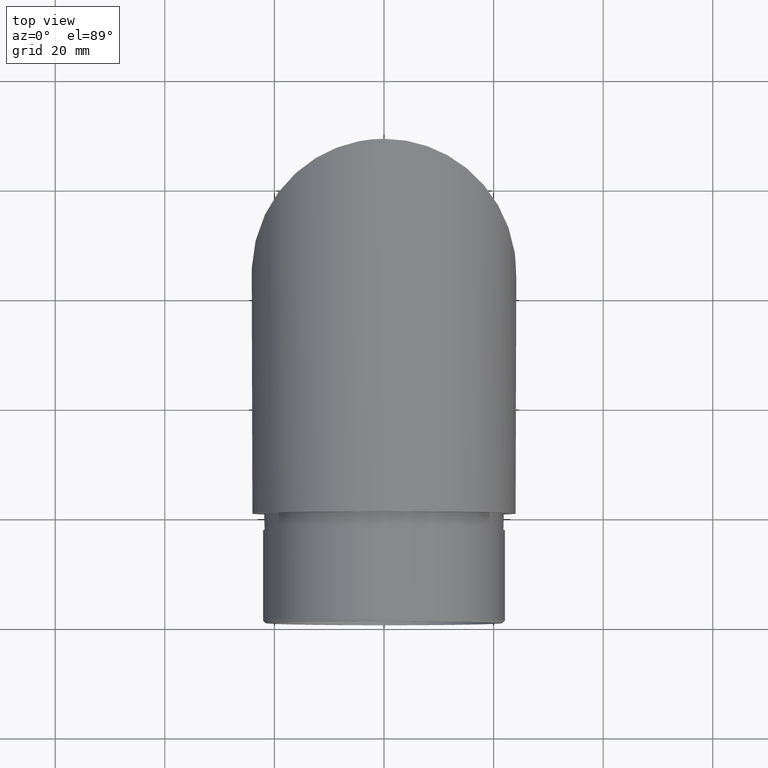
[diagram: clean part render]
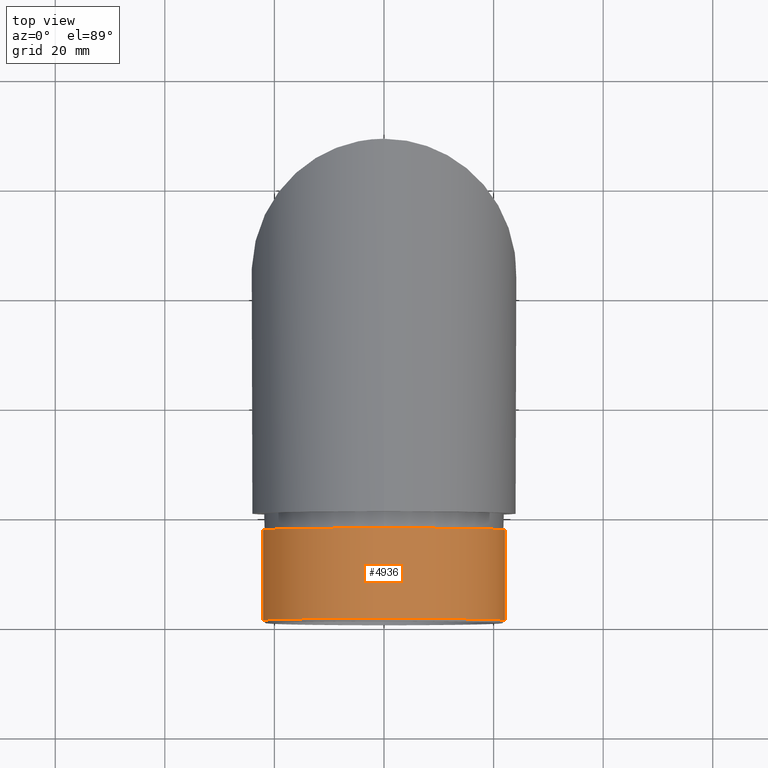
[diagram: same view with one face highlighted and labeled with its STEP entity id]
A machine part, top view. The second image highlights one B-rep face of the part: STEP entity #4936.
In plain terms, the highlighted cylindrical surface (bore or boss wall) has radius 22.1 mm, axis along (-0, 1, 0).
Its self-contained STEP definition (entity closure, byte-faithful):
#140 = DIRECTION ( 'NONE',  ( 0.0000000000000000000, 0.0000000000000000000, -1.000000000000000000 ) ) ;
#1962 = CIRCLE ( 'NONE', #8552, 22.10000000000000100 ) ;
#2621 = VERTEX_POINT ( 'NONE', #5335 ) ;
#2655 = DIRECTION ( 'NONE',  ( 0.0000000000000000000, 1.000000000000000000, 0.0000000000000000000 ) ) ;
#2710 = EDGE_LOOP ( 'NONE', ( #6653 ) ) ;
#2878 = DIRECTION ( 'NONE',  ( 0.0000000000000000000, 0.0000000000000000000, 1.000000000000000000 ) ) ;
#2918 = CIRCLE ( 'NONE', #5755, 22.10000000000000100 ) ;
#3229 = CYLINDRICAL_SURFACE ( 'NONE', #6886, 22.10000000000000100 ) ;
#3563 = DIRECTION ( 'NONE',  ( 0.0000000000000000000, -1.000000000000000000, 0.0000000000000000000 ) ) ;
#3604 = CARTESIAN_POINT ( 'NONE',  ( 0.0000000000000000000, -3.000000000000000000, -22.10000000000000100 ) ) ;
#3636 = CARTESIAN_POINT ( 'NONE',  ( 0.0000000000000000000, -3.000000000000000000, 0.0000000000000000000 ) ) ;
#4487 = VERTEX_POINT ( 'NONE', #3604 ) ;
#4936 = ADVANCED_FACE ( 'NONE', ( #9821, #5368 ), #3229, .T. ) ;
#5335 = CARTESIAN_POINT ( 'NONE',  ( 0.0000000000000000000, -19.50000000000001400, -22.10000000000000100 ) ) ;
#5368 = FACE_OUTER_BOUND ( 'NONE', #9469, .T. ) ;
#5755 = AXIS2_PLACEMENT_3D ( 'NONE', #3636, #3563, #140 ) ;
#6308 = DIRECTION ( 'NONE',  ( -0.0000000000000000000, 1.000000000000000000, 0.0000000000000000000 ) ) ;
#6653 = ORIENTED_EDGE ( 'NONE', *, *, #10506, .T. ) ;
#6886 = AXIS2_PLACEMENT_3D ( 'NONE', #7173, #6308, #2878 ) ;
#6896 = DIRECTION ( 'NONE',  ( 0.0000000000000000000, 0.0000000000000000000, -1.000000000000000000 ) ) ;
#7173 = CARTESIAN_POINT ( 'NONE',  ( 0.0000000000000000000, -20.00000000000000000, 0.0000000000000000000 ) ) ;
#8552 = AXIS2_PLACEMENT_3D ( 'NONE', #10075, #2655, #6896 ) ;
#8601 = EDGE_CURVE ( 'NONE', #4487, #4487, #2918, .T. ) ;
#9469 = EDGE_LOOP ( 'NONE', ( #11035 ) ) ;
#9821 = FACE_OUTER_BOUND ( 'NONE', #2710, .T. ) ;
#10075 = CARTESIAN_POINT ( 'NONE',  ( 0.0000000000000000000, -19.50000000000001400, 0.0000000000000000000 ) ) ;
#10506 = EDGE_CURVE ( 'NONE', #2621, #2621, #1962, .T. ) ;
#11035 = ORIENTED_EDGE ( 'NONE', *, *, #8601, .T. ) ;